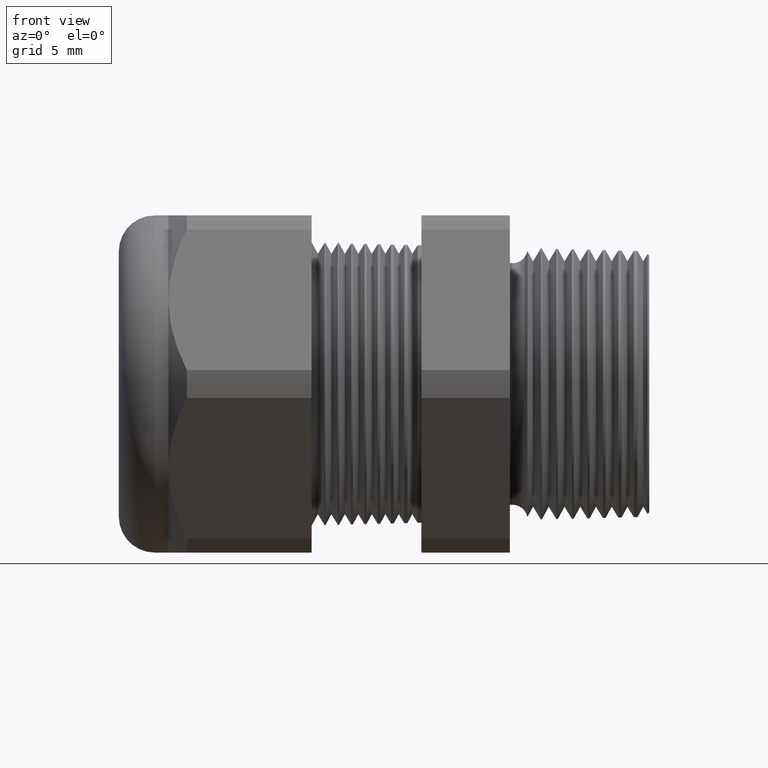
[diagram: clean part render]
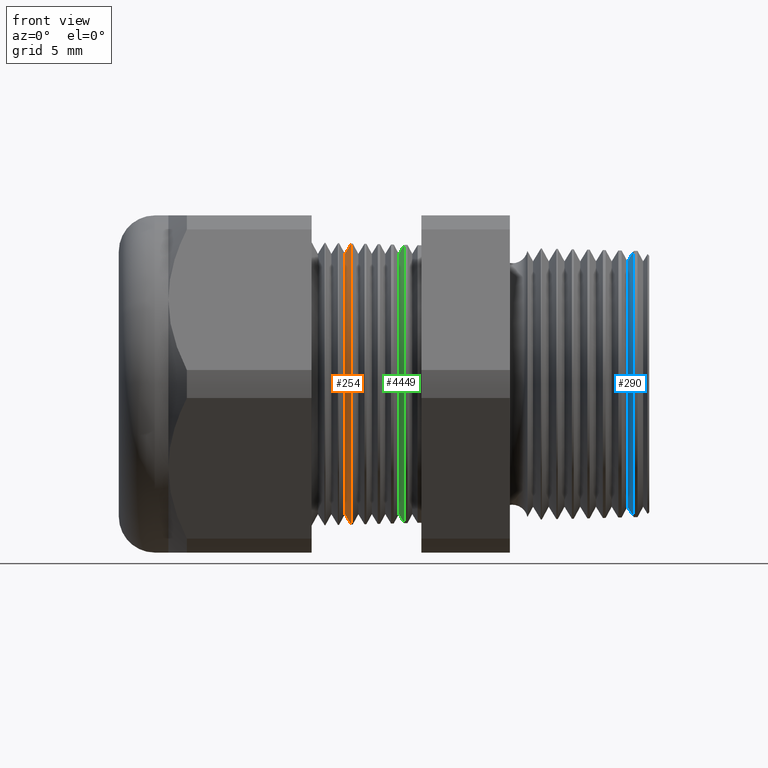
[diagram: same view with three faces highlighted in distinct colors, each labeled with its STEP entity id]
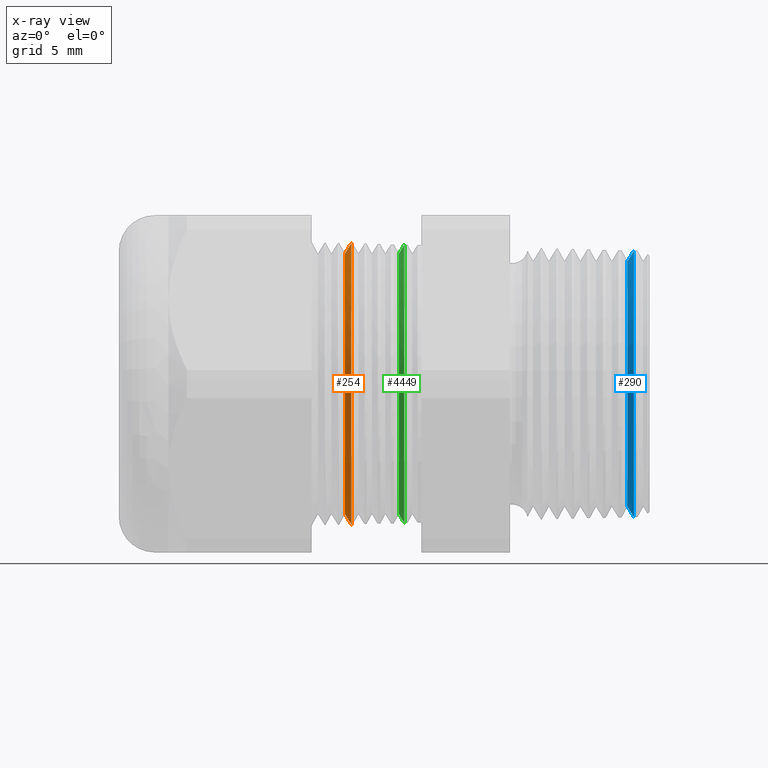
[diagram: x-ray of the same camera — body ghosted, the three highlighted faces saturated]
A machine part, front view with three faces highlighted in distinct colors.
The next image is the same camera in x-ray (body ghosted, the three faces saturated) — at least one of them is partly hidden behind the body in this view.
Their STEP definitions:

[orange] entity #254 — the highlighted conical surface has half-angle 58.5 deg.
#201 = EDGE_CURVE ( 'NONE', #404, #351, #1746, .T. ) ;
#254 = ADVANCED_FACE ( 'NONE', ( #1799 ), #1798, .T. ) ;
#255 = EDGE_LOOP ( 'NONE', ( #256, #257, #258, #259 ) ) ;
#256 = ORIENTED_EDGE ( 'NONE', *, *, #406, .F. ) ;
#257 = ORIENTED_EDGE ( 'NONE', *, *, #201, .T. ) ;
#258 = ORIENTED_EDGE ( 'NONE', *, *, #412, .T. ) ;
#259 = ORIENTED_EDGE ( 'NONE', *, *, #716, .T. ) ;
#351 = VERTEX_POINT ( 'NONE', #1960 ) ;
#404 = VERTEX_POINT ( 'NONE', #2102 ) ;
#406 = EDGE_CURVE ( 'NONE', #404, #407, #2101, .T. ) ;
#407 = VERTEX_POINT ( 'NONE', #2097 ) ;
#410 = VERTEX_POINT ( 'NONE', #2091 ) ;
#412 = EDGE_CURVE ( 'NONE', #351, #410, #2090, .T. ) ;
#716 = EDGE_CURVE ( 'NONE', #410, #407, #2651, .T. ) ;
#1743 = DIRECTION ( 'NONE',  ( 0.0000000000000000000, 0.0000000000000000000, -1.000000000000000000 ) ) ;
#1744 = DIRECTION ( 'NONE',  ( 1.000000000000000000, 0.0000000000000000000, 0.0000000000000000000 ) ) ;
#1745 = AXIS2_PLACEMENT_3D ( 'NONE', #1751, #1744, #1743 ) ;
#1746 = CIRCLE ( 'NONE', #1745, 0.2896307351718083200 ) ;
#1751 = CARTESIAN_POINT ( 'NONE',  ( -0.6770917547981794000, 0.0000000000000000000, 0.0000000000000000000 ) ) ;
#1794 = DIRECTION ( 'NONE',  ( 0.0000000000000000000, 0.0000000000000000000, -1.000000000000000000 ) ) ;
#1795 = DIRECTION ( 'NONE',  ( 1.000000000000000000, 0.0000000000000000000, 0.0000000000000000000 ) ) ;
#1796 = AXIS2_PLACEMENT_3D ( 'NONE', #1803, #1795, #1794 ) ;
#1798 = CONICAL_SURFACE ( 'NONE', #1796, 0.2896307351718083200, 1.021017612416705000 ) ;
#1799 = FACE_OUTER_BOUND ( 'NONE', #255, .T. ) ;
#1803 = CARTESIAN_POINT ( 'NONE',  ( -0.6770917547981794000, 0.0000000000000000000, 0.0000000000000000000 ) ) ;
#1960 = CARTESIAN_POINT ( 'NONE',  ( -0.6770917547981794000, 3.692536165126864400E-017, -0.2896307351718083200 ) ) ;
#2087 = DIRECTION ( 'NONE',  ( 0.5224985647159299300, 0.0000000000000000000, -0.8526401643541037200 ) ) ;
#2088 = VECTOR ( 'NONE', #2087, 39.37007874015748100 ) ;
#2089 = CARTESIAN_POINT ( 'NONE',  ( -0.6770917547981794000, 0.0000000000000000000, -0.2896307351718083200 ) ) ;
#2090 = LINE ( 'NONE', #2089, #2088 ) ;
#2091 = CARTESIAN_POINT ( 'NONE',  ( -0.6629561197587997600, 3.829445987493594600E-017, -0.3126979950594574500 ) ) ;
#2097 = CARTESIAN_POINT ( 'NONE',  ( -0.6629561197587997600, 0.0000000000000000000, 0.3126979950594574500 ) ) ;
#2098 = DIRECTION ( 'NONE',  ( 0.5224985647159299300, 1.044183048100726400E-016, 0.8526401643541037200 ) ) ;
#2099 = VECTOR ( 'NONE', #2098, 39.37007874015748100 ) ;
#2100 = CARTESIAN_POINT ( 'NONE',  ( -0.6770917547981794000, 3.546953527628497700E-017, 0.2896307351718083200 ) ) ;
#2101 = LINE ( 'NONE', #2100, #2099 ) ;
#2102 = CARTESIAN_POINT ( 'NONE',  ( -0.6770917547981794000, 0.0000000000000000000, 0.2896307351718083200 ) ) ;
#2647 = DIRECTION ( 'NONE',  ( 0.0000000000000000000, 0.0000000000000000000, -1.000000000000000000 ) ) ;
#2648 = DIRECTION ( 'NONE',  ( -1.000000000000000000, 0.0000000000000000000, 0.0000000000000000000 ) ) ;
#2649 = CARTESIAN_POINT ( 'NONE',  ( -0.6629561197587997600, 0.0000000000000000000, 0.0000000000000000000 ) ) ;
#2650 = AXIS2_PLACEMENT_3D ( 'NONE', #2649, #2648, #2647 ) ;
#2651 = CIRCLE ( 'NONE', #2650, 0.3126979950594574500 ) ;

[blue] entity #290 — the highlighted conical surface has half-angle 58.5 deg.
#290 = ADVANCED_FACE ( 'NONE', ( #1883 ), #1882, .T. ) ;
#291 = EDGE_LOOP ( 'NONE', ( #292, #293, #294, #295 ) ) ;
#292 = ORIENTED_EDGE ( 'NONE', *, *, #1185, .F. ) ;
#293 = ORIENTED_EDGE ( 'NONE', *, *, #4376, .T. ) ;
#294 = ORIENTED_EDGE ( 'NONE', *, *, #1242, .T. ) ;
#295 = ORIENTED_EDGE ( 'NONE', *, *, #978, .T. ) ;
#978 = EDGE_CURVE ( 'NONE', #1295, #1186, #3196, .T. ) ;
#1185 = EDGE_CURVE ( 'NONE', #1239, #1186, #3551, .T. ) ;
#1186 = VERTEX_POINT ( 'NONE', #3547 ) ;
#1238 = VERTEX_POINT ( 'NONE', #3641 ) ;
#1239 = VERTEX_POINT ( 'NONE', #3640 ) ;
#1242 = EDGE_CURVE ( 'NONE', #1238, #1295, #3695, .T. ) ;
#1295 = VERTEX_POINT ( 'NONE', #3785 ) ;
#1877 = DIRECTION ( 'NONE',  ( 0.0000000000000000000, 0.0000000000000000000, -1.000000000000000000 ) ) ;
#1878 = DIRECTION ( 'NONE',  ( 1.000000000000000000, 0.0000000000000000000, 0.0000000000000000000 ) ) ;
#1879 = CARTESIAN_POINT ( 'NONE',  ( -0.04847073567907516500, 0.0000000000000000000, 0.0000000000000000000 ) ) ;
#1880 = AXIS2_PLACEMENT_3D ( 'NONE', #1879, #1878, #1877 ) ;
#1882 = CONICAL_SURFACE ( 'NONE', #1880, 0.2730123959962614800, 1.021017612416701200 ) ;
#1883 = FACE_OUTER_BOUND ( 'NONE', #291, .T. ) ;
#3192 = DIRECTION ( 'NONE',  ( 0.0000000000000000000, 0.0000000000000000000, -1.000000000000000000 ) ) ;
#3193 = DIRECTION ( 'NONE',  ( -1.000000000000000000, 0.0000000000000000000, 0.0000000000000000000 ) ) ;
#3194 = CARTESIAN_POINT ( 'NONE',  ( -0.03424021830932633800, 0.0000000000000000000, 0.0000000000000000000 ) ) ;
#3195 = AXIS2_PLACEMENT_3D ( 'NONE', #3194, #3193, #3192 ) ;
#3196 = CIRCLE ( 'NONE', #3195, 0.2962344897748053200 ) ;
#3547 = CARTESIAN_POINT ( 'NONE',  ( -0.03424021830932633800, 0.0000000000000000000, 0.2962344897748053800 ) ) ;
#3548 = DIRECTION ( 'NONE',  ( 0.5224985647159332600, 1.044183048100724200E-016, 0.8526401643541019500 ) ) ;
#3549 = VECTOR ( 'NONE', #3548, 39.37007874015747400 ) ;
#3550 = CARTESIAN_POINT ( 'NONE',  ( -0.04847073567907516500, 3.343437568843712800E-017, 0.2730123959962614800 ) ) ;
#3551 = LINE ( 'NONE', #3550, #3549 ) ;
#3640 = CARTESIAN_POINT ( 'NONE',  ( -0.04847073567907516500, 0.0000000000000000000, 0.2730123959962614800 ) ) ;
#3641 = CARTESIAN_POINT ( 'NONE',  ( -0.04847073567907516500, 3.489997397665207900E-017, -0.2730123959962614800 ) ) ;
#3692 = DIRECTION ( 'NONE',  ( 0.5224985647159332600, 0.0000000000000000000, -0.8526401643541019500 ) ) ;
#3693 = VECTOR ( 'NONE', #3692, 39.37007874015747400 ) ;
#3694 = CARTESIAN_POINT ( 'NONE',  ( -0.04847073567907516500, 0.0000000000000000000, -0.2730123959962614800 ) ) ;
#3695 = LINE ( 'NONE', #3694, #3693 ) ;
#3785 = CARTESIAN_POINT ( 'NONE',  ( -0.03424021830932633800, 3.627826196997647400E-017, -0.2962344897748053800 ) ) ;
#4165 = DIRECTION ( 'NONE',  ( 0.0000000000000000000, 0.0000000000000000000, -1.000000000000000000 ) ) ;
#4166 = DIRECTION ( 'NONE',  ( 1.000000000000000000, 0.0000000000000000000, 0.0000000000000000000 ) ) ;
#4167 = AXIS2_PLACEMENT_3D ( 'NONE', #4173, #4166, #4165 ) ;
#4168 = CIRCLE ( 'NONE', #4167, 0.2730123959962614800 ) ;
#4173 = CARTESIAN_POINT ( 'NONE',  ( -0.04847073567907516500, 0.0000000000000000000, 0.0000000000000000000 ) ) ;
#4376 = EDGE_CURVE ( 'NONE', #1239, #1238, #4168, .T. ) ;

[green] entity #4449 — the highlighted conical surface has half-angle 58.5 deg.
#733 = EDGE_CURVE ( 'NONE', #1429, #1433, #2676, .T. ) ;
#1429 = VERTEX_POINT ( 'NONE', #4024 ) ;
#1431 = EDGE_CURVE ( 'NONE', #1450, #1429, #4023, .T. ) ;
#1432 = EDGE_CURVE ( 'NONE', #1451, #1433, #3511, .T. ) ;
#1433 = VERTEX_POINT ( 'NONE', #4078 ) ;
#1450 = VERTEX_POINT ( 'NONE', #4102 ) ;
#1451 = VERTEX_POINT ( 'NONE', #4101 ) ;
#2674 = CARTESIAN_POINT ( 'NONE',  ( -0.5448513183790346700, 0.0000000000000000000, 0.0000000000000000000 ) ) ;
#2675 = AXIS2_PLACEMENT_3D ( 'NONE', #2674, #2736, #2735 ) ;
#2676 = CIRCLE ( 'NONE', #2675, 0.3096053119935833800 ) ;
#2735 = DIRECTION ( 'NONE',  ( 0.0000000000000000000, 0.0000000000000000000, -1.000000000000000000 ) ) ;
#2736 = DIRECTION ( 'NONE',  ( -1.000000000000000000, 0.0000000000000000000, 0.0000000000000000000 ) ) ;
#3511 = LINE ( 'NONE', #3513, #3769 ) ;
#3513 = CARTESIAN_POINT ( 'NONE',  ( -0.5570917547981794100, 3.546953527628497700E-017, 0.2896307351718083200 ) ) ;
#3766 = DIRECTION ( 'NONE',  ( 0.5224985647159299300, 1.044183048100726400E-016, 0.8526401643541037200 ) ) ;
#3769 = VECTOR ( 'NONE', #3766, 39.37007874015748100 ) ;
#4020 = DIRECTION ( 'NONE',  ( 0.5224985647159299300, 0.0000000000000000000, -0.8526401643541037200 ) ) ;
#4021 = VECTOR ( 'NONE', #4020, 39.37007874015748100 ) ;
#4022 = CARTESIAN_POINT ( 'NONE',  ( -0.5570917547981794100, 0.0000000000000000000, -0.2896307351718083200 ) ) ;
#4023 = LINE ( 'NONE', #4022, #4021 ) ;
#4024 = CARTESIAN_POINT ( 'NONE',  ( -0.5448513183790346700, 3.791571543319594300E-017, -0.3096053119935833800 ) ) ;
#4078 = CARTESIAN_POINT ( 'NONE',  ( -0.5448513183790346700, 0.0000000000000000000, 0.3096053119935833800 ) ) ;
#4101 = CARTESIAN_POINT ( 'NONE',  ( -0.5570917547981794100, 0.0000000000000000000, 0.2896307351718083200 ) ) ;
#4102 = CARTESIAN_POINT ( 'NONE',  ( -0.5570917547981794100, 3.673017550437932200E-017, -0.2896307351718083200 ) ) ;
#4212 = CARTESIAN_POINT ( 'NONE',  ( -0.5570917547981794100, 0.0000000000000000000, 0.0000000000000000000 ) ) ;
#4253 = DIRECTION ( 'NONE',  ( 0.0000000000000000000, 0.0000000000000000000, -1.000000000000000000 ) ) ;
#4254 = DIRECTION ( 'NONE',  ( 1.000000000000000000, 0.0000000000000000000, 0.0000000000000000000 ) ) ;
#4255 = CARTESIAN_POINT ( 'NONE',  ( -0.5570917547981794100, 0.0000000000000000000, 0.0000000000000000000 ) ) ;
#4256 = AXIS2_PLACEMENT_3D ( 'NONE', #4255, #4254, #4253 ) ;
#4258 = CONICAL_SURFACE ( 'NONE', #4256, 0.2896307351718083200, 1.021017612416705000 ) ;
#4259 = FACE_OUTER_BOUND ( 'NONE', #4445, .T. ) ;
#4260 = DIRECTION ( 'NONE',  ( 0.0000000000000000000, 0.0000000000000000000, -1.000000000000000000 ) ) ;
#4261 = DIRECTION ( 'NONE',  ( 1.000000000000000000, 0.0000000000000000000, 0.0000000000000000000 ) ) ;
#4262 = AXIS2_PLACEMENT_3D ( 'NONE', #4212, #4261, #4260 ) ;
#4263 = CIRCLE ( 'NONE', #4262, 0.2896307351718083200 ) ;
#4440 = ORIENTED_EDGE ( 'NONE', *, *, #733, .T. ) ;
#4442 = ORIENTED_EDGE ( 'NONE', *, *, #4446, .T. ) ;
#4443 = ORIENTED_EDGE ( 'NONE', *, *, #1431, .T. ) ;
#4444 = ORIENTED_EDGE ( 'NONE', *, *, #1432, .F. ) ;
#4445 = EDGE_LOOP ( 'NONE', ( #4444, #4442, #4443, #4440 ) ) ;
#4446 = EDGE_CURVE ( 'NONE', #1451, #1450, #4263, .T. ) ;
#4449 = ADVANCED_FACE ( 'NONE', ( #4259 ), #4258, .T. ) ;